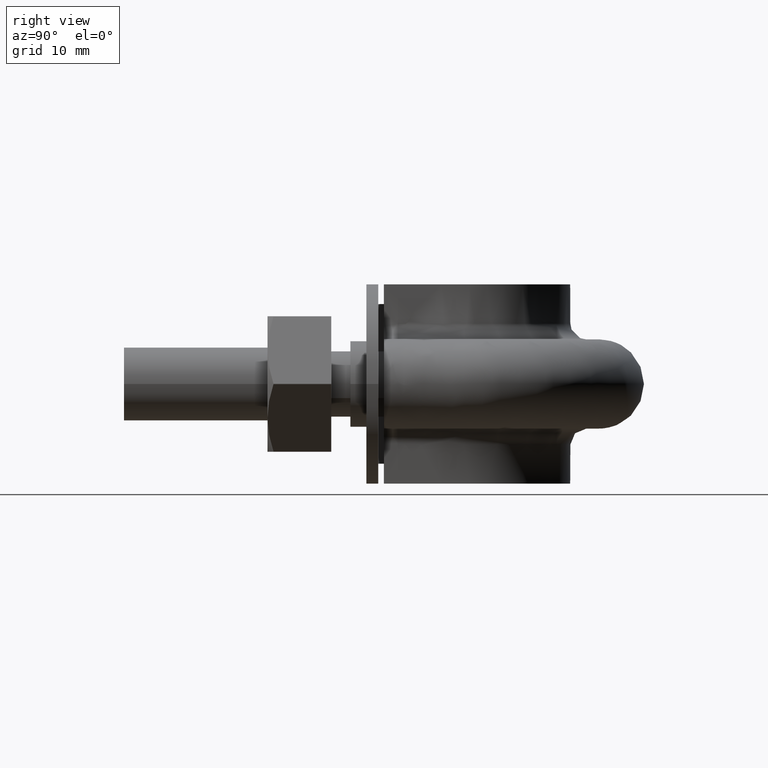
[diagram: clean part render]
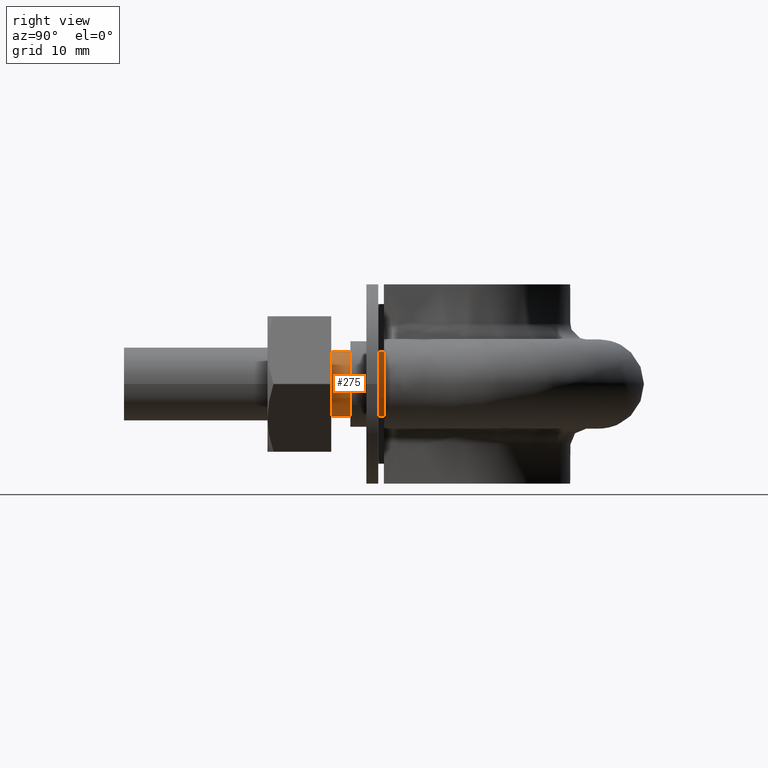
[diagram: same view with one face highlighted and labeled with its STEP entity id]
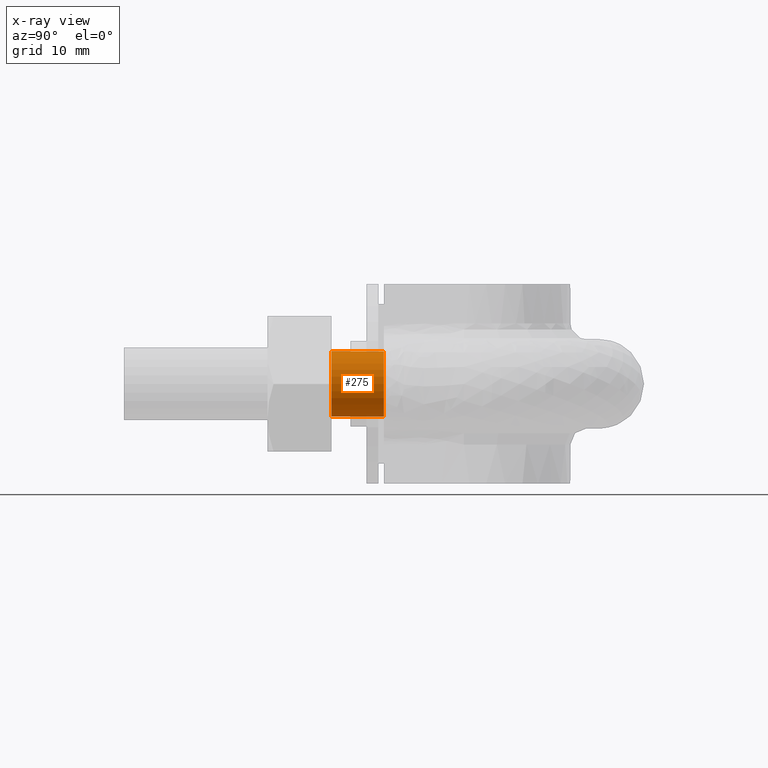
[diagram: x-ray of the same camera — body ghosted, the highlighted face saturated]
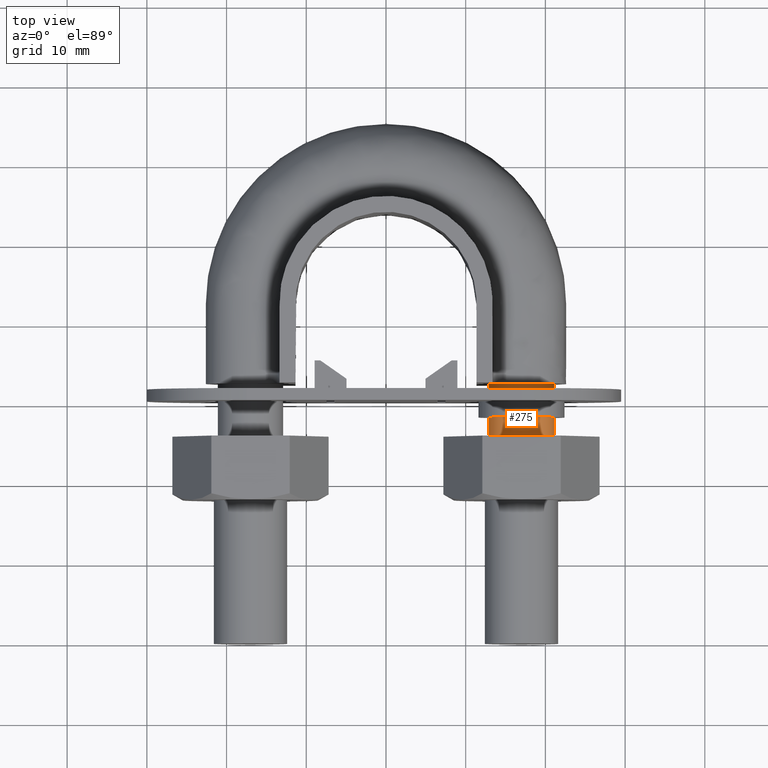
[diagram: same view with one face highlighted and labeled with its STEP entity id]
A machine part, right view. The second image highlights one B-rep face of the part: STEP entity #275.
The next image is the same camera in x-ray: the body ghosted, the highlighted face saturated — about 1% of this face is hidden behind the body in this view.
A second angle (top view) of the same face is appended — the face is thin or edge-on in the first view.
In plain terms, the highlighted cylindrical surface (bore or boss wall) has radius 4.1 mm, axis along (0, 1, -0).
Its self-contained STEP definition (entity closure, byte-faithful):
#275 = ADVANCED_FACE( '', ( #401, #402 ), #403, .T. );
#401 = FACE_OUTER_BOUND( '', #1406, .T. );
#402 = FACE_OUTER_BOUND( '', #1407, .T. );
#403 = CYLINDRICAL_SURFACE( '', #1408, 4.10000000000000 );
#1406 = EDGE_LOOP( '', ( #1873, #1874, #1875, #1876, #1877, #1878, #1879 ) );
#1407 = EDGE_LOOP( '', ( #1880 ) );
#1408 = AXIS2_PLACEMENT_3D( '', #1881, #1882, #1883 );
#1873 = ORIENTED_EDGE( '', *, *, #2651, .T. );
#1874 = ORIENTED_EDGE( '', *, *, #2652, .T. );
#1875 = ORIENTED_EDGE( '', *, *, #2653, .T. );
#1876 = ORIENTED_EDGE( '', *, *, #2654, .T. );
#1877 = ORIENTED_EDGE( '', *, *, #2655, .T. );
#1878 = ORIENTED_EDGE( '', *, *, #2656, .T. );
#1879 = ORIENTED_EDGE( '', *, *, #2657, .T. );
#1880 = ORIENTED_EDGE( '', *, *, #2658, .T. );
#1881 = CARTESIAN_POINT( '', ( 17.0000000000000, 32.6000000000000, -1.01213715143419E-014 ) );
#1882 = DIRECTION( '', ( 2.44921270764475E-016, 1.00000000000000, -3.06151588455594E-016 ) );
#1883 = DIRECTION( '', ( 1.00000000000000, -2.44921270764475E-016, -5.47382212626882E-048 ) );
#2651 = EDGE_CURVE( '', #2909, #2910, #2911, .T. );
#2652 = EDGE_CURVE( '', #2910, #2912, #2913, .T. );
#2653 = EDGE_CURVE( '', #2912, #2914, #2915, .T. );
#2654 = EDGE_CURVE( '', #2914, #2916, #2917, .T. );
#2655 = EDGE_CURVE( '', #2916, #2918, #2919, .T. );
#2656 = EDGE_CURVE( '', #2918, #2920, #2921, .T. );
#2657 = EDGE_CURVE( '', #2920, #2909, #2922, .T. );
#2658 = EDGE_CURVE( '', #2923, #2923, #2924, .F. );
#2909 = VERTEX_POINT( '', #3463 );
#2910 = VERTEX_POINT( '', #3464 );
#2911 = CIRCLE( '', #3465, 4.10000000000000 );
#2912 = VERTEX_POINT( '', #3466 );
#2913 = CIRCLE( '', #3467, 4.10000000000000 );
#2914 = VERTEX_POINT( '', #3468 );
#2915 = CIRCLE( '', #3469, 4.10000000000000 );
#2916 = VERTEX_POINT( '', #3470 );
#2917 = CIRCLE( '', #3471, 4.10000000000000 );
#2918 = VERTEX_POINT( '', #3472 );
#2919 = CIRCLE( '', #3473, 4.10000000000000 );
#2920 = VERTEX_POINT( '', #3474 );
#2921 = CIRCLE( '', #3475, 4.10000000000000 );
#2922 = CIRCLE( '', #3476, 4.10000000000000 );
#2923 = VERTEX_POINT( '', #3477 );
#2924 = CIRCLE( '', #3478, 4.10000000000000 );
#3463 = CARTESIAN_POINT( '', ( 20.6939723583998, 32.6000000000000, 1.77892333038233 ) );
#3464 = CARTESIAN_POINT( '', ( 17.9123358292207, 32.6000000000000, 3.99720443994552 ) );
#3465 = AXIS2_PLACEMENT_3D( '', #4137, #4138, #4139 );
#3466 = CARTESIAN_POINT( '', ( 14.4436918123792, 32.6000000000000, 3.20550907811893 ) );
#3467 = AXIS2_PLACEMENT_3D( '', #4140, #4141, #4142 );
#3468 = CARTESIAN_POINT( '', ( 12.9000000000000, 32.6000000000000, 1.83395593916885E-013 ) );
#3469 = AXIS2_PLACEMENT_3D( '', #4143, #4144, #4145 );
#3470 = CARTESIAN_POINT( '', ( 14.4436918123816, 32.6000000000000, -3.20550907812081 ) );
#3471 = AXIS2_PLACEMENT_3D( '', #4146, #4147, #4148 );
#3472 = CARTESIAN_POINT( '', ( 17.9123358292213, 32.6000000000000, -3.99720443994539 ) );
#3473 = AXIS2_PLACEMENT_3D( '', #4149, #4150, #4151 );
#3474 = CARTESIAN_POINT( '', ( 20.6939723584000, 32.6000000000000, -1.77892333038192 ) );
#3475 = AXIS2_PLACEMENT_3D( '', #4152, #4153, #4154 );
#3476 = AXIS2_PLACEMENT_3D( '', #4155, #4156, #4157 );
#3477 = CARTESIAN_POINT( '', ( 17.0000000000000, 26.0000000000000, 4.09999999999999 ) );
#3478 = AXIS2_PLACEMENT_3D( '', #4158, #4159, #4160 );
#4137 = CARTESIAN_POINT( '', ( 17.0000000000000, 32.6000000000000, -1.01213715143419E-014 ) );
#4138 = DIRECTION( '', ( -2.44921270764475E-016, -1.00000000000000, 3.06151588455594E-016 ) );
#4139 = DIRECTION( '', ( 1.00000000000000, -2.44921270764475E-016, -5.47382212626882E-048 ) );
#4140 = CARTESIAN_POINT( '', ( 17.0000000000000, 32.6000000000000, -1.01213715143419E-014 ) );
#4141 = DIRECTION( '', ( -2.44921270764475E-016, -1.00000000000000, 3.06151588455594E-016 ) );
#4142 = DIRECTION( '', ( 1.00000000000000, -2.44921270764475E-016, -5.47382212626882E-048 ) );
#4143 = CARTESIAN_POINT( '', ( 17.0000000000000, 32.6000000000000, -1.01213715143419E-014 ) );
#4144 = DIRECTION( '', ( -2.44921270764475E-016, -1.00000000000000, 3.06151588455594E-016 ) );
#4145 = DIRECTION( '', ( 1.00000000000000, -2.44921270764475E-016, -5.47382212626882E-048 ) );
#4146 = CARTESIAN_POINT( '', ( 17.0000000000000, 32.6000000000000, -1.01213715143419E-014 ) );
#4147 = DIRECTION( '', ( -2.44921270764475E-016, -1.00000000000000, 3.06151588455594E-016 ) );
#4148 = DIRECTION( '', ( 1.00000000000000, -2.44921270764475E-016, -5.47382212626882E-048 ) );
#4149 = CARTESIAN_POINT( '', ( 17.0000000000000, 32.6000000000000, -1.01213715143419E-014 ) );
#4150 = DIRECTION( '', ( -2.44921270764475E-016, -1.00000000000000, 3.06151588455594E-016 ) );
#4151 = DIRECTION( '', ( 1.00000000000000, -2.44921270764475E-016, -5.47382212626882E-048 ) );
#4152 = CARTESIAN_POINT( '', ( 17.0000000000000, 32.6000000000000, -1.01213715143419E-014 ) );
#4153 = DIRECTION( '', ( -2.44921270764475E-016, -1.00000000000000, 3.06151588455594E-016 ) );
#4154 = DIRECTION( '', ( 1.00000000000000, -2.44921270764475E-016, -5.47382212626882E-048 ) );
#4155 = CARTESIAN_POINT( '', ( 17.0000000000000, 32.6000000000000, -1.01213715143419E-014 ) );
#4156 = DIRECTION( '', ( -2.44921270764475E-016, -1.00000000000000, 3.06151588455594E-016 ) );
#4157 = DIRECTION( '', ( 1.00000000000000, -2.44921270764475E-016, -5.47382212626882E-048 ) );
#4158 = CARTESIAN_POINT( '', ( 17.0000000000000, 26.0000000000000, -8.10077103053502E-015 ) );
#4159 = DIRECTION( '', ( -2.44921270764475E-016, -1.00000000000000, 3.06151588455594E-016 ) );
#4160 = DIRECTION( '', ( 3.74915180455534E-032, 3.06151588455594E-016, 1.00000000000000 ) );